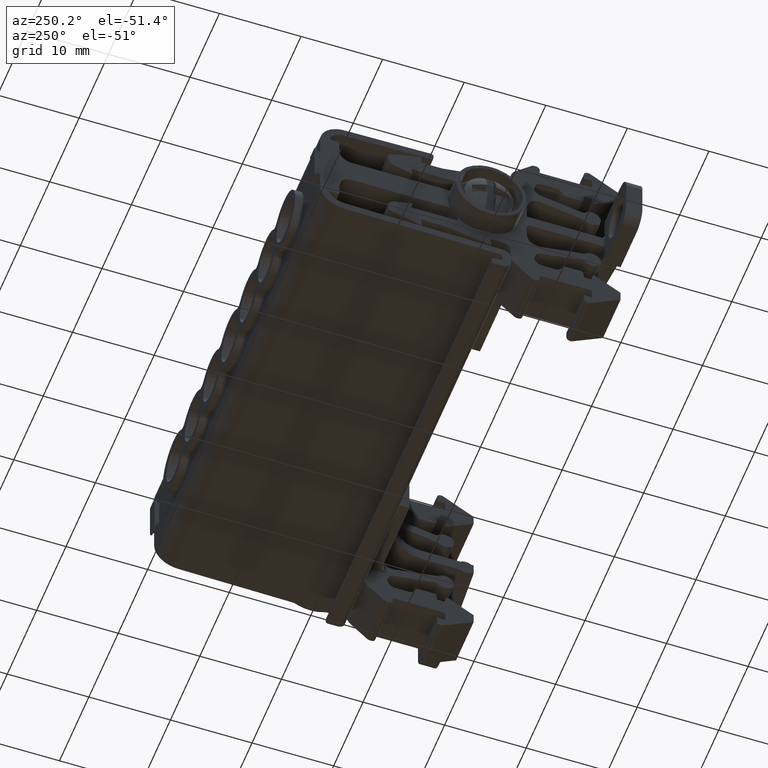
[diagram: clean part render]
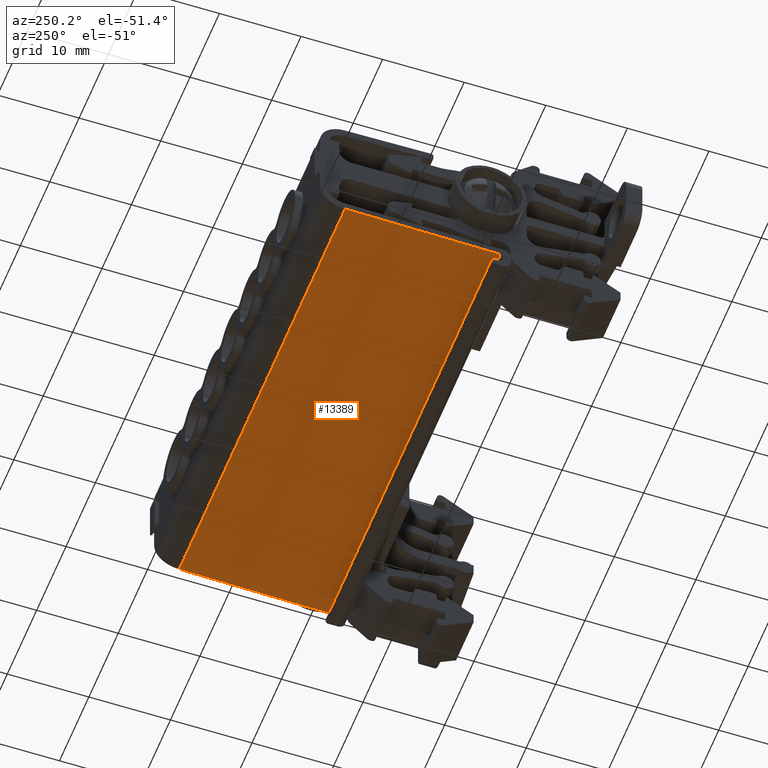
[diagram: same view with one face highlighted and labeled with its STEP entity id]
A machine part, auxiliary view. The second image highlights one B-rep face of the part: STEP entity #13389.
In plain terms, the highlighted planar face has unit normal (-0.0002, 0.0175, -0.9998).
Its self-contained STEP definition (entity closure, byte-faithful):
#237 = DIRECTION ( 'NONE',  ( 0.0000000000000000000, 0.9998476951527972600, 0.01745240664318283400 ) ) ;
#241 = DIRECTION ( 'NONE',  ( -0.0001522932435196018200, 0.01745240644079397400, -0.9998476835579474000 ) ) ;
#262 = PLANE ( 'NONE',  #9428 ) ;
#263 = CARTESIAN_POINT ( 'NONE',  ( -158.2582235749148400, -44.06781041530020800, 88.45648532823895500 ) ) ;
#274 = FACE_OUTER_BOUND ( 'NONE', #18908, .T. ) ;
#2288 = CARTESIAN_POINT ( 'NONE',  ( -83.25817385258456200, -25.03878589138286200, 88.77721444988451100 ) ) ;
#2319 = LINE ( 'NONE', #2288, #11134 ) ;
#2320 = DIRECTION ( 'NONE',  ( 0.9999999883998506000, 3.684207295882824500E-016, -0.0001523164420513505200 ) ) ;
#3236 = CARTESIAN_POINT ( 'NONE',  ( -83.25817385258459100, -25.03878589138001900, 88.77721444988448200 ) ) ;
#3277 = CARTESIAN_POINT ( 'NONE',  ( -26.75570317589903600, -25.03878589138284000, 88.76860819448407400 ) ) ;
#7743 = EDGE_CURVE ( 'NONE', #24821, #24914, #2319, .T. ) ;
#9428 = AXIS2_PLACEMENT_3D ( 'NONE', #263, #241, #237 ) ;
#9791 = VECTOR ( 'NONE', #16171, 1000.000000000000200 ) ;
#9910 = VECTOR ( 'NONE', #27568, 1000.000000000000300 ) ;
#9919 = VECTOR ( 'NONE', #27579, 1000.000000000000100 ) ;
#11134 = VECTOR ( 'NONE', #2320, 1000.000000000000200 ) ;
#13389 = ADVANCED_FACE ( 'NONE', ( #274 ), #262, .T. ) ;
#15451 = EDGE_CURVE ( 'NONE', #18395, #18366, #16142, .T. ) ;
#15686 = EDGE_CURVE ( 'NONE', #24914, #18395, #27525, .T. ) ;
#15689 = EDGE_CURVE ( 'NONE', #18366, #24821, #27612, .T. ) ;
#16142 = LINE ( 'NONE', #16150, #9791 ) ;
#16150 = CARTESIAN_POINT ( 'NONE',  ( -26.75575376824054900, -44.06781041529854500, 88.43645533968469900 ) ) ;
#16171 = DIRECTION ( 'NONE',  ( -0.9999999883998506000, -2.971927218678820500E-014, 0.0001523164420508597800 ) ) ;
#18366 = VERTEX_POINT ( 'NONE', #27413 ) ;
#18395 = VERTEX_POINT ( 'NONE', #27405 ) ;
#18908 = EDGE_LOOP ( 'NONE', ( #25761, #25758, #25747, #25775 ) ) ;
#24821 = VERTEX_POINT ( 'NONE', #3236 ) ;
#24914 = VERTEX_POINT ( 'NONE', #3277 ) ;
#25747 = ORIENTED_EDGE ( 'NONE', *, *, #15686, .T. ) ;
#25758 = ORIENTED_EDGE ( 'NONE', *, *, #7743, .T. ) ;
#25761 = ORIENTED_EDGE ( 'NONE', *, *, #15689, .T. ) ;
#25775 = ORIENTED_EDGE ( 'NONE', *, *, #15451, .T. ) ;
#27405 = CARTESIAN_POINT ( 'NONE',  ( -26.75575376824056700, -44.06781041529854500, 88.43645533968491200 ) ) ;
#27413 = CARTESIAN_POINT ( 'NONE',  ( -83.25822444492602900, -44.06781041529995900, 88.44506159508522100 ) ) ;
#27525 = LINE ( 'NONE', #27586, #9919 ) ;
#27568 = DIRECTION ( 'NONE',  ( 2.658288443477027500E-006, 0.9998476951563301000, 0.01745240623832871500 ) ) ;
#27579 = DIRECTION ( 'NONE',  ( -2.658288442930371500E-006, -0.9998476951563303200, -0.01745240623831784500 ) ) ;
#27586 = CARTESIAN_POINT ( 'NONE',  ( -26.75570317589917500, -25.03878589138283700, 88.76860819448405900 ) ) ;
#27599 = CARTESIAN_POINT ( 'NONE',  ( -83.25822444492605700, -44.06781041530022900, 88.44506159508533500 ) ) ;
#27612 = LINE ( 'NONE', #27599, #9910 ) ;